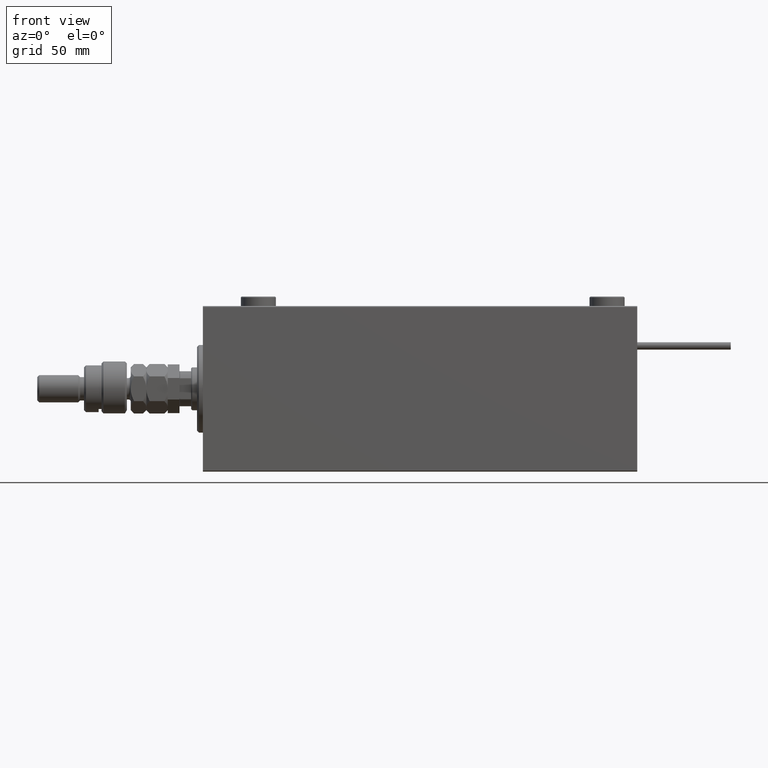
[diagram: clean part render]
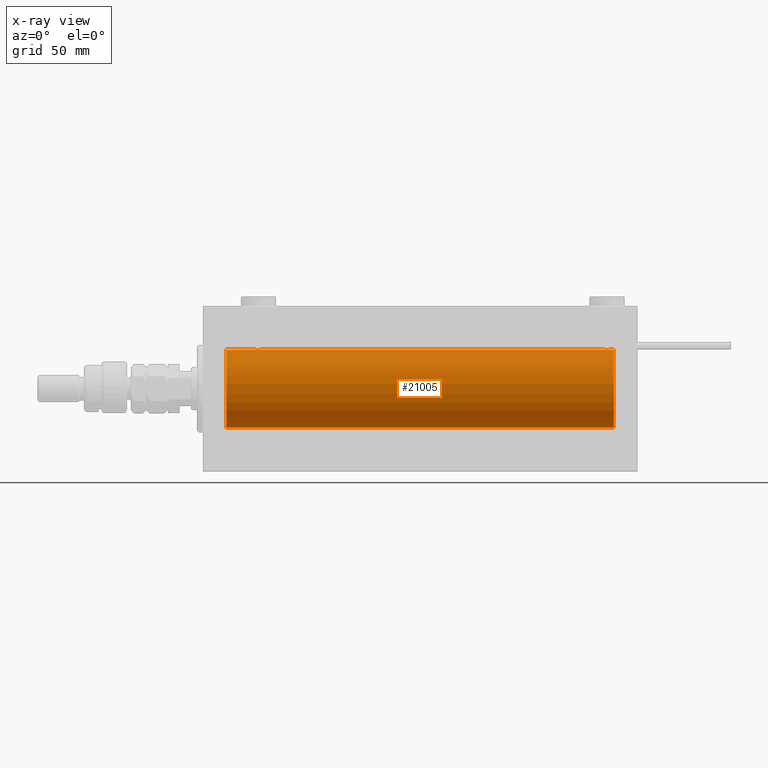
[diagram: x-ray — body ghosted, one internal face saturated and labeled with its STEP entity id]
A machine part, front view, then the same camera in x-ray: the body is ghosted and one INTERNAL B-rep face — a face not visible from any outside direction — is saturated and labeled: STEP entity #21005.
In plain terms, the highlighted cylindrical surface (partial cylindrical patch) has radius 20 mm, axis along (-1, -0, -0).
Its self-contained STEP definition (entity closure, byte-faithful):
#100 = VECTOR ( 'NONE', #28155, 1000.000000000000000 ) ;
#208 = CARTESIAN_POINT ( 'NONE',  ( 208.3857907667073732, -1.797933656607912711, 19.91908554465558367 ) ) ;
#629 = CARTESIAN_POINT ( 'NONE',  ( 29.50067219139243235, -1.736582545981374182, 19.92459705242980306 ) ) ;
#1449 = CARTESIAN_POINT ( 'NONE',  ( 26.55244937117492299, -0.5243189001515023984, 19.99457699142850942 ) ) ;
#1707 = CARTESIAN_POINT ( 'NONE',  ( 211.0000000000000000, 0.000000000000000000, 0.000000000000000000 ) ) ;
#2199 = ORIENTED_EDGE ( 'NONE', *, *, #7352, .T. ) ;
#2250 = CYLINDRICAL_SURFACE ( 'NONE', #18867, 20.00000000000000000 ) ;
#2325 = CARTESIAN_POINT ( 'NONE',  ( 28.23922743968432059, -1.987205673487808966, -19.90104673894211018 ) ) ;
#2733 = CARTESIAN_POINT ( 'NONE',  ( 205.7531302369693265, -1.008108445278719900, -19.97602680192585822 ) ) ;
#3163 = CARTESIAN_POINT ( 'NONE',  ( 26.75313023696928738, -1.008108445278687704, -19.97602680192586533 ) ) ;
#3572 = CARTESIAN_POINT ( 'NONE',  ( 207.6336519614245617, -1.999898234284084308, -19.89975896996866211 ) ) ;
#5108 = CARTESIAN_POINT ( 'NONE',  ( 27.85369326075355900, -1.897222639860597360, 19.90987429971497136 ) ) ;
#5117 = EDGE_CURVE ( 'NONE', #36342, #52017, #21608, .T. ) ;
#5223 = VERTEX_POINT ( 'NONE', #8175 ) ;
#5933 = CARTESIAN_POINT ( 'NONE',  ( 29.14348528733042798, -1.898187925611338089, 19.90978194174746818 ) ) ;
#5967 = CARTESIAN_POINT ( 'NONE',  ( 211.0000000000000000, 0.000000000000000000, 20.00000000000000000 ) ) ;
#6274 = CARTESIAN_POINT ( 'NONE',  ( 27.98351467081095123, -1.936551476643005198, -19.90603968831098314 ) ) ;
#6805 = VECTOR ( 'NONE', #29160, 1000.000000000000000 ) ;
#6927 = VERTEX_POINT ( 'NONE', #15988 ) ;
#6953 = CARTESIAN_POINT ( 'NONE',  ( 206.9835146708109903, -1.936551476643029401, -19.90603968831098314 ) ) ;
#7352 = EDGE_CURVE ( 'NONE', #49779, #6927, #35092, .T. ) ;
#7517 = CARTESIAN_POINT ( 'NONE',  ( 205.9022530844527239, -1.230936344679302907, -19.96293863536308422 ) ) ;
#7900 = CARTESIAN_POINT ( 'NONE',  ( 211.0000000000000000, 2.449293598294706513E-15, -20.00000000000000000 ) ) ;
#8077 = CARTESIAN_POINT ( 'NONE',  ( 206.9807648786472782, -1.935816449315130860, 19.90611141657401006 ) ) ;
#8175 = CARTESIAN_POINT ( 'NONE',  ( 209.5000000000000284, 2.449293582762473501E-15, -20.00000000000000000 ) ) ;
#8721 = DIRECTION ( 'NONE',  ( -1.000000000000000000, -0.000000000000000000, -0.000000000000000000 ) ) ;
#8904 = CARTESIAN_POINT ( 'NONE',  ( 209.4467948419179777, -0.5270924491156543379, 19.99450181871976184 ) ) ;
#9451 = CARTESIAN_POINT ( 'NONE',  ( 209.5000000000000284, 6.344963575700506717E-15, 20.00000000000000000 ) ) ;
#9597 = CARTESIAN_POINT ( 'NONE',  ( 27.27971054205536205, -1.589957321664211998, 19.93683391378736758 ) ) ;
#9880 = CARTESIAN_POINT ( 'NONE',  ( 27.17693331080529973, -1.505486175075773758, 19.94347168299867334 ) ) ;
#9898 = DIRECTION ( 'NONE',  ( 0.000000000000000000, 0.000000000000000000, 1.000000000000000000 ) ) ;
#10149 = CARTESIAN_POINT ( 'NONE',  ( 27.98076487864722850, -1.935816449315125753, 19.90611141657402072 ) ) ;
#10670 = DIRECTION ( 'NONE',  ( -1.000000000000000000, -0.000000000000000000, -0.000000000000000000 ) ) ;
#10883 = CARTESIAN_POINT ( 'NONE',  ( 208.3882943720709591, -1.796691196322336870, -19.91919800395357143 ) ) ;
#11429 = CARTESIAN_POINT ( 'NONE',  ( 205.5524493711750154, -0.5243189001515009551, 19.99457699142850231 ) ) ;
#11512 = ORIENTED_EDGE ( 'NONE', *, *, #29206, .T. ) ;
#11580 = CARTESIAN_POINT ( 'NONE',  ( 28.36941128289166159, -2.000100592782553921, -19.89973863218036598 ) ) ;
#11641 = CARTESIAN_POINT ( 'NONE',  ( 26.50000000000000355, -3.809869420541414000E-15, -20.00000000000000000 ) ) ;
#11710 = CARTESIAN_POINT ( 'NONE',  ( 209.2482591346001755, -1.005710574260850532, -19.97614991974274190 ) ) ;
#12266 = CARTESIAN_POINT ( 'NONE',  ( 206.4969344366040787, -1.735203193119897236, 19.92471783160911869 ) ) ;
#13095 = VECTOR ( 'NONE', #37671, 1000.000000000000000 ) ;
#13116 = ORIENTED_EDGE ( 'NONE', *, *, #22965, .T. ) ;
#13530 = CARTESIAN_POINT ( 'NONE',  ( 30.44679484191799901, -0.5270924491156695479, 19.99450181871976540 ) ) ;
#13798 = CARTESIAN_POINT ( 'NONE',  ( 29.01648532918905943, -1.936551476643006753, 19.90603968831098669 ) ) ;
#14091 = VERTEX_POINT ( 'NONE', #5967 ) ;
#14098 = CARTESIAN_POINT ( 'NONE',  ( 12.00000000000001066, 0.000000000000000000, 0.000000000000000000 ) ) ;
#14632 = CARTESIAN_POINT ( 'NONE',  ( 26.75174086539981033, -1.005710574260841206, 19.97614991974274545 ) ) ;
#14829 = DIRECTION ( 'NONE',  ( 0.000000000000000000, 0.000000000000000000, 1.000000000000000000 ) ) ;
#15023 = ORIENTED_EDGE ( 'NONE', *, *, #24029, .T. ) ;
#15093 = LINE ( 'NONE', #31878, #33063 ) ;
#15236 = CARTESIAN_POINT ( 'NONE',  ( 30.24825913460018612, -1.005710574260838985, -19.97614991974274190 ) ) ;
#15506 = CARTESIAN_POINT ( 'NONE',  ( 30.44755062882508412, -0.5243189001514996228, -19.99457699142849876 ) ) ;
#15635 = CARTESIAN_POINT ( 'NONE',  ( 208.0192351213528354, -1.935816449315146626, -19.90611141657401362 ) ) ;
#15644 = DIRECTION ( 'NONE',  ( -1.000000000000000000, -0.000000000000000000, -0.000000000000000000 ) ) ;
#15660 = ORIENTED_EDGE ( 'NONE', *, *, #27821, .F. ) ;
#15789 = CARTESIAN_POINT ( 'NONE',  ( 29.82306668919470383, -1.505486175075772870, -19.94347168299867334 ) ) ;
#15988 = CARTESIAN_POINT ( 'NONE',  ( 209.5000000000000284, 6.344963575700506717E-15, 20.00000000000000000 ) ) ;
#16465 = CARTESIAN_POINT ( 'NONE',  ( 205.5000000000000568, -0.2610801504281911045, 20.00000000000000000 ) ) ;
#17021 = CARTESIAN_POINT ( 'NONE',  ( 208.5006721913924821, -1.736582545981376624, 19.92459705242981727 ) ) ;
#17124 = CARTESIAN_POINT ( 'NONE',  ( 211.0000000000000000, 2.449293598294706513E-15, -20.00000000000000000 ) ) ;
#17303 = VERTEX_POINT ( 'NONE', #34104 ) ;
#17728 = CARTESIAN_POINT ( 'NONE',  ( 28.63058871710834552, -2.000100592782553921, 19.89973863218035888 ) ) ;
#18141 = CARTESIAN_POINT ( 'NONE',  ( 208.0164853291890950, -1.936551476642998093, 19.90603968831098669 ) ) ;
#18559 = CARTESIAN_POINT ( 'NONE',  ( 26.50000000000001421, -0.2610801504281925478, 20.00000000000000000 ) ) ;
#18867 = AXIS2_PLACEMENT_3D ( 'NONE', #1707, #10670, #23564 ) ;
#19253 = CARTESIAN_POINT ( 'NONE',  ( 205.5000000000000284, -1.553188236289650144E-23, 20.00000000000000000 ) ) ;
#19424 = CARTESIAN_POINT ( 'NONE',  ( 28.63365196142448355, -1.999898234284062992, -19.89975896996866211 ) ) ;
#20260 = CARTESIAN_POINT ( 'NONE',  ( 30.50000000000000000, 2.449293582768389958E-15, -20.00000000000000000 ) ) ;
#20394 = CARTESIAN_POINT ( 'NONE',  ( 208.8230666891946896, -1.505486175075778199, -19.94347168299867690 ) ) ;
#20398 = CARTESIAN_POINT ( 'NONE',  ( 206.1769333108053672, -1.505486175075775757, 19.94347168299868045 ) ) ;
#21005 = ADVANCED_FACE ( 'NONE', ( #44024 ), #2250, .F. ) ;
#21608 = LINE ( 'NONE', #17124, #25595 ) ;
#21783 = CARTESIAN_POINT ( 'NONE',  ( 208.7180541947215033, -1.591668229360198250, 19.93669678979812332 ) ) ;
#21926 = CARTESIAN_POINT ( 'NONE',  ( 26.90058475115969117, -1.228758402364236169, 19.96307487248083845 ) ) ;
#22188 = CARTESIAN_POINT ( 'NONE',  ( 211.0000000000000000, 2.449293598294706513E-15, -20.00000000000000000 ) ) ;
#22300 = EDGE_CURVE ( 'NONE', #5223, #48200, #41073, .T. ) ;
#22591 = EDGE_CURVE ( 'NONE', #14091, #6927, #36860, .T. ) ;
#22767 = CARTESIAN_POINT ( 'NONE',  ( 28.76077256031567586, -1.987205673487809410, 19.90104673894210663 ) ) ;
#22965 = EDGE_CURVE ( 'NONE', #51646, #36342, #51058, .T. ) ;
#23379 = CARTESIAN_POINT ( 'NONE',  ( 29.01923512135276795, -1.935816449315124643, -19.90611141657401717 ) ) ;
#23564 = DIRECTION ( 'NONE',  ( 0.000000000000000000, 0.000000000000000000, 1.000000000000000000 ) ) ;
#23764 = CARTESIAN_POINT ( 'NONE',  ( 206.8565147126696218, -1.898187925611367399, -19.90978194174746463 ) ) ;
#23780 = CARTESIAN_POINT ( 'NONE',  ( 211.0000000000000000, 0.000000000000000000, 0.000000000000000000 ) ) ;
#23910 = CARTESIAN_POINT ( 'NONE',  ( 27.17903093152710525, -1.507328959728492457, -19.94333197382385592 ) ) ;
#24029 = EDGE_CURVE ( 'NONE', #17303, #36274, #50352, .T. ) ;
#24160 = LINE ( 'NONE', #7900, #6805 ) ;
#24199 = CARTESIAN_POINT ( 'NONE',  ( 27.61420923329272981, -1.797933656607917596, -19.91908554465558367 ) ) ;
#24329 = CARTESIAN_POINT ( 'NONE',  ( 209.0994152488403870, -1.228758402364237279, -19.96307487248085266 ) ) ;
#24420 = EDGE_CURVE ( 'NONE', #40609, #14091, #24610, .T. ) ;
#24610 = CIRCLE ( 'NONE', #48754, 20.00000000000000000 ) ;
#24625 = AXIS2_PLACEMENT_3D ( 'NONE', #14098, #31157, #9898 ) ;
#25414 = CARTESIAN_POINT ( 'NONE',  ( 209.0977469155473614, -1.230936344679278482, 19.96293863536309132 ) ) ;
#25595 = VECTOR ( 'NONE', #8721, 1000.000000000000000 ) ;
#26227 = EDGE_LOOP ( 'NONE', ( #51463, #11512, #52574, #31628, #13116, #40519, #38682, #44036, #15023, #15660, #2199, #46693 ) ) ;
#26964 = CARTESIAN_POINT ( 'NONE',  ( 28.23641855908585541, -1.986835489085815087, 19.90108393514801222 ) ) ;
#27556 = CARTESIAN_POINT ( 'NONE',  ( 30.49999999999999645, -0.2610801504281900498, -19.99999999999999645 ) ) ;
#27821 = EDGE_CURVE ( 'NONE', #49779, #36274, #49712, .T. ) ;
#27956 = CARTESIAN_POINT ( 'NONE',  ( 205.5000000000000284, -2.194759453252805910E-14, -20.00000000000000000 ) ) ;
#28155 = DIRECTION ( 'NONE',  ( -1.000000000000000000, -0.000000000000000000, -0.000000000000000000 ) ) ;
#28178 = CARTESIAN_POINT ( 'NONE',  ( 30.50000000000000000, 2.449293582768389958E-15, -20.00000000000000000 ) ) ;
#28223 = CARTESIAN_POINT ( 'NONE',  ( 208.1463067392464836, -1.897222639860616233, -19.90987429971496070 ) ) ;
#28376 = CARTESIAN_POINT ( 'NONE',  ( 28.76358144091416236, -1.986835489085814199, -19.90108393514801222 ) ) ;
#28509 = CARTESIAN_POINT ( 'NONE',  ( 205.9005847511597835, -1.228758402364239721, 19.96307487248084911 ) ) ;
#28657 = CARTESIAN_POINT ( 'NONE',  ( 26.55320515808203297, -0.5270924491156698810, -19.99450181871976184 ) ) ;
#29160 = DIRECTION ( 'NONE',  ( -1.000000000000000000, -0.000000000000000000, -0.000000000000000000 ) ) ;
#29206 = EDGE_CURVE ( 'NONE', #40609, #5223, #24160, .T. ) ;
#29229 = CARTESIAN_POINT ( 'NONE',  ( 12.00000000000001066, 2.449293598294706513E-15, -20.00000000000000000 ) ) ;
#29336 = CARTESIAN_POINT ( 'NONE',  ( 206.6117056279291262, -1.796691196322313999, 19.91919800395357854 ) ) ;
#30018 = CARTESIAN_POINT ( 'NONE',  ( 211.0000000000000000, 2.449293598294706513E-15, -20.00000000000000000 ) ) ;
#30597 = CARTESIAN_POINT ( 'NONE',  ( 30.50000000000000355, -0.2644051013330980249, 20.00000000000000355 ) ) ;
#30858 = CARTESIAN_POINT ( 'NONE',  ( 26.50000000000000355, -1.552636033655995435E-23, 20.00000000000000000 ) ) ;
#30996 = CARTESIAN_POINT ( 'NONE',  ( 209.2468697630308156, -1.008108445278671050, 19.97602680192586888 ) ) ;
#31142 = CARTESIAN_POINT ( 'NONE',  ( 27.49693443660397207, -1.735203193119897458, 19.92471783160910448 ) ) ;
#31157 = DIRECTION ( 'NONE',  ( -1.000000000000000000, 0.000000000000000000, 0.000000000000000000 ) ) ;
#31628 = ORIENTED_EDGE ( 'NONE', *, *, #41353, .T. ) ;
#31878 = CARTESIAN_POINT ( 'NONE',  ( 211.0000000000000000, 0.000000000000000000, 20.00000000000000000 ) ) ;
#32146 = CARTESIAN_POINT ( 'NONE',  ( 209.5000000000000284, -0.2610801504281894947, -19.99999999999999645 ) ) ;
#32351 = CARTESIAN_POINT ( 'NONE',  ( 30.50000000000000000, -1.082540790071359066E-15, 20.00000000000000000 ) ) ;
#32558 = CARTESIAN_POINT ( 'NONE',  ( 29.38829437207091999, -1.796691196322316664, -19.91919800395357143 ) ) ;
#33063 = VECTOR ( 'NONE', #15644, 1000.000000000000000 ) ;
#33531 = CARTESIAN_POINT ( 'NONE',  ( 206.2797105420553407, -1.589957321664211998, 19.93683391378736403 ) ) ;
#33983 = VECTOR ( 'NONE', #42361, 1000.000000000000000 ) ;
#34104 = CARTESIAN_POINT ( 'NONE',  ( 26.50000000000000355, -1.552636033655995435E-23, 20.00000000000000000 ) ) ;
#34795 = CARTESIAN_POINT ( 'NONE',  ( 30.09774691554731163, -1.230936344679276484, 19.96293863536309843 ) ) ;
#35092 = B_SPLINE_CURVE_WITH_KNOTS ( 'NONE', 3,
 ( #37746, #16465, #11429, #37197, #28509, #20398, #33531, #12266, #29336, #46420, #8077, #42230, #38011, #47543, #47259, #18141, #52284, #208, #17021, #21783, #43070, #25414, #30996, #8904, #52019, #9451 ),
 .UNSPECIFIED., .F., .F.,
 ( 4, 2, 2, 2, 2, 2, 2, 2, 2, 2, 2, 2, 4 ),
 ( 0.006256819553329835346, 0.007038738568778791539, 0.007820657584227747733, 0.008211617091952224529, 0.008602576599676703059, 0.008993536107401181590, 0.009384495615125658385, 0.009775455122850136916, 0.01016641463057461545, 0.01055737413829909224, 0.01094833364602356904, 0.01173025266147258334, 0.01251217167692159765 ),
 .UNSPECIFIED. ) ;
#35637 = CARTESIAN_POINT ( 'NONE',  ( 29.82096906847289830, -1.507328959728490236, 19.94333197382385592 ) ) ;
#36274 = VERTEX_POINT ( 'NONE', #32351 ) ;
#36342 = VERTEX_POINT ( 'NONE', #11641 ) ;
#36515 = CARTESIAN_POINT ( 'NONE',  ( 27.28194580527848601, -1.591668229360197140, -19.93669678979812332 ) ) ;
#36644 = CARTESIAN_POINT ( 'NONE',  ( 206.4993278086076032, -1.736582545981399939, -19.92459705242980306 ) ) ;
#36797 = CARTESIAN_POINT ( 'NONE',  ( 30.09941524884030173, -1.228758402364235502, -19.96307487248084911 ) ) ;
#36860 = LINE ( 'NONE', #54485, #100 ) ;
#36921 = CARTESIAN_POINT ( 'NONE',  ( 207.2392274396843277, -1.987205673487832502, -19.90104673894210308 ) ) ;
#37197 = CARTESIAN_POINT ( 'NONE',  ( 205.7517408653998814, -1.005710574260841428, 19.97614991974274190 ) ) ;
#37343 = CARTESIAN_POINT ( 'NONE',  ( 27.49932780860757475, -1.736582545981376180, -19.92459705242981371 ) ) ;
#37671 = DIRECTION ( 'NONE',  ( -1.000000000000000000, -0.000000000000000000, -0.000000000000000000 ) ) ;
#37746 = CARTESIAN_POINT ( 'NONE',  ( 205.5000000000000284, -1.553188236289650144E-23, 20.00000000000000000 ) ) ;
#38011 = CARTESIAN_POINT ( 'NONE',  ( 207.3663480385755520, -1.999898234284061216, 19.89975896996866567 ) ) ;
#38682 = ORIENTED_EDGE ( 'NONE', *, *, #52280, .T. ) ;
#39000 = CARTESIAN_POINT ( 'NONE',  ( 28.36634803857552356, -1.999898234284064769, 19.89975896996866567 ) ) ;
#39015 = CARTESIAN_POINT ( 'NONE',  ( 12.00000000000001066, 0.000000000000000000, 20.00000000000000000 ) ) ;
#39819 = CIRCLE ( 'NONE', #24625, 20.00000000000000000 ) ;
#39828 = CARTESIAN_POINT ( 'NONE',  ( 29.71805419472152110, -1.591668229360196696, 19.93669678979813042 ) ) ;
#40437 = CARTESIAN_POINT ( 'NONE',  ( 26.90225308445269903, -1.230936344679278260, -19.96293863536309132 ) ) ;
#40519 = ORIENTED_EDGE ( 'NONE', *, *, #5117, .T. ) ;
#40609 = VERTEX_POINT ( 'NONE', #22188 ) ;
#40835 = CARTESIAN_POINT ( 'NONE',  ( 206.1790309315271372, -1.507328959728516438, -19.94333197382385592 ) ) ;
#41073 = B_SPLINE_CURVE_WITH_KNOTS ( 'NONE', 3,
 ( #49245, #32146, #49788, #11710, #24329, #20394, #46137, #41400, #10883, #28223, #15635, #45599, #3572, #41951, #36921, #6953, #23764, #53720, #36644, #45872, #40835, #7517, #2733, #50347, #41121, #27956 ),
 .UNSPECIFIED., .F., .F.,
 ( 4, 2, 2, 2, 2, 2, 2, 2, 2, 2, 2, 2, 4 ),
 ( 0.006256819553329811927, 0.007038738568778726487, 0.007820657584227641915, 0.008211617091952127384, 0.008602576599676614588, 0.008993536107401101792, 0.009384495615125588996, 0.009775455122850074466, 0.01016641463057456167, 0.01055737413829904714, 0.01094833364602353434, 0.01173025266147256600, 0.01251217167692159765 ),
 .UNSPECIFIED. ) ;
#41121 = CARTESIAN_POINT ( 'NONE',  ( 205.5000000000000853, -0.2644051013331287225, -20.00000000000000000 ) ) ;
#41136 = DIRECTION ( 'NONE',  ( -1.000000000000000000, 0.000000000000000000, 0.000000000000000000 ) ) ;
#41353 = EDGE_CURVE ( 'NONE', #48200, #51646, #42090, .T. ) ;
#41400 = CARTESIAN_POINT ( 'NONE',  ( 208.5030655633960350, -1.735203193119904341, -19.92471783160911158 ) ) ;
#41679 = EDGE_CURVE ( 'NONE', #17303, #46644, #15093, .T. ) ;
#41951 = CARTESIAN_POINT ( 'NONE',  ( 207.3694112828917469, -2.000100592782575237, -19.89973863218036243 ) ) ;
#42090 = LINE ( 'NONE', #30018, #33983 ) ;
#42230 = CARTESIAN_POINT ( 'NONE',  ( 207.2364185590859620, -1.986835489085817086, 19.90108393514801932 ) ) ;
#42361 = DIRECTION ( 'NONE',  ( -1.000000000000000000, -0.000000000000000000, -0.000000000000000000 ) ) ;
#43070 = CARTESIAN_POINT ( 'NONE',  ( 208.8209690684728912, -1.507328959728491125, 19.94333197382385592 ) ) ;
#43238 = CARTESIAN_POINT ( 'NONE',  ( 205.5000000000000284, -2.194759453252805910E-14, -20.00000000000000000 ) ) ;
#44024 = FACE_OUTER_BOUND ( 'NONE', #26227, .T. ) ;
#44036 = ORIENTED_EDGE ( 'NONE', *, *, #41679, .F. ) ;
#44641 = CARTESIAN_POINT ( 'NONE',  ( 29.14630673924643744, -1.897222639860594029, -19.90987429971496780 ) ) ;
#44916 = CARTESIAN_POINT ( 'NONE',  ( 29.72028945794465571, -1.589957321664208223, -19.93683391378736047 ) ) ;
#45470 = CARTESIAN_POINT ( 'NONE',  ( 27.85651471266959334, -1.898187925611338533, -19.90978194174746818 ) ) ;
#45599 = CARTESIAN_POINT ( 'NONE',  ( 207.7635814409141517, -1.986835489085835738, -19.90108393514801577 ) ) ;
#45755 = CARTESIAN_POINT ( 'NONE',  ( 26.50000000000001066, -0.2644051013331030209, -20.00000000000000355 ) ) ;
#45872 = CARTESIAN_POINT ( 'NONE',  ( 206.2819458052785535, -1.591668229360221565, -19.93669678979811977 ) ) ;
#46137 = CARTESIAN_POINT ( 'NONE',  ( 208.7202894579446877, -1.589957321664215328, -19.93683391378736403 ) ) ;
#46420 = CARTESIAN_POINT ( 'NONE',  ( 206.8536932607536016, -1.897222639860592475, 19.90987429971496780 ) ) ;
#46644 = VERTEX_POINT ( 'NONE', #39015 ) ;
#46693 = ORIENTED_EDGE ( 'NONE', *, *, #22591, .F. ) ;
#47259 = CARTESIAN_POINT ( 'NONE',  ( 207.7607725603157292, -1.987205673487804747, 19.90104673894209952 ) ) ;
#47543 = CARTESIAN_POINT ( 'NONE',  ( 207.6305887171083384, -2.000100592782551256, 19.89973863218035888 ) ) ;
#48200 = VERTEX_POINT ( 'NONE', #43238 ) ;
#48514 = CARTESIAN_POINT ( 'NONE',  ( 27.61170562792909067, -1.796691196322318662, 19.91919800395356788 ) ) ;
#48754 = AXIS2_PLACEMENT_3D ( 'NONE', #23780, #41136, #14829 ) ;
#49112 = CARTESIAN_POINT ( 'NONE',  ( 26.50000000000000355, -3.809869420541414000E-15, -20.00000000000000000 ) ) ;
#49245 = CARTESIAN_POINT ( 'NONE',  ( 209.5000000000000284, 2.449293582762473501E-15, -20.00000000000000000 ) ) ;
#49712 = LINE ( 'NONE', #49989, #13095 ) ;
#49779 = VERTEX_POINT ( 'NONE', #19253 ) ;
#49788 = CARTESIAN_POINT ( 'NONE',  ( 209.4475506288250983, -0.5243189001515076164, -19.99457699142850586 ) ) ;
#49938 = CARTESIAN_POINT ( 'NONE',  ( 29.50306556339602437, -1.735203193119894349, -19.92471783160910803 ) ) ;
#49989 = CARTESIAN_POINT ( 'NONE',  ( 211.0000000000000000, 0.000000000000000000, 20.00000000000000000 ) ) ;
#50347 = CARTESIAN_POINT ( 'NONE',  ( 205.5532051580820792, -0.5270924491157048530, -19.99450181871975474 ) ) ;
#50352 = B_SPLINE_CURVE_WITH_KNOTS ( 'NONE', 3,
 ( #30858, #18559, #1449, #14632, #21926, #9880, #9597, #31142, #48514, #5108, #10149, #26964, #39000, #17728, #22767, #13798, #5933, #52157, #629, #39828, #35637, #34795, #51888, #13530, #30597, #52989 ),
 .UNSPECIFIED., .F., .F.,
 ( 4, 2, 2, 2, 2, 2, 2, 2, 2, 2, 2, 2, 4 ),
 ( 0.006256819553329830141, 0.007038738568778805417, 0.007820657584227780693, 0.008211617091952264427, 0.008602576599676748162, 0.008993536107401231897, 0.009384495615125715631, 0.009775455122850199366, 0.01016641463057468137, 0.01055737413829916510, 0.01094833364602364884, 0.01173025266147261630, 0.01251217167692158204 ),
 .UNSPECIFIED. ) ;
#51058 = B_SPLINE_CURVE_WITH_KNOTS ( 'NONE', 3,
 ( #20260, #27556, #15506, #15236, #36797, #15789, #44916, #49938, #32558, #44641, #23379, #28376, #19424, #11580, #2325, #6274, #45470, #24199, #37343, #36515, #23910, #40437, #3163, #28657, #45755, #49112 ),
 .UNSPECIFIED., .F., .F.,
 ( 4, 2, 2, 2, 2, 2, 2, 2, 2, 2, 2, 2, 4 ),
 ( 0.006256819553329842284, 0.007038738568778818427, 0.007820657584227792836, 0.008211617091952278305, 0.008602576599676762040, 0.008993536107401245774, 0.009384495615125729509, 0.009775455122850213244, 0.01016641463057469871, 0.01055737413829918071, 0.01094833364602366618, 0.01173025266147263365, 0.01251217167692159939 ),
 .UNSPECIFIED. ) ;
#51463 = ORIENTED_EDGE ( 'NONE', *, *, #24420, .F. ) ;
#51646 = VERTEX_POINT ( 'NONE', #28178 ) ;
#51888 = CARTESIAN_POINT ( 'NONE',  ( 30.24686976303072683, -1.008108445278685705, 19.97602680192586888 ) ) ;
#52017 = VERTEX_POINT ( 'NONE', #29229 ) ;
#52019 = CARTESIAN_POINT ( 'NONE',  ( 209.5000000000000284, -0.2644051013330986910, 20.00000000000000000 ) ) ;
#52157 = CARTESIAN_POINT ( 'NONE',  ( 29.38579076670728085, -1.797933656607916264, 19.91908554465557302 ) ) ;
#52280 = EDGE_CURVE ( 'NONE', #52017, #46644, #39819, .T. ) ;
#52284 = CARTESIAN_POINT ( 'NONE',  ( 208.1434852873304067, -1.898187925611334315, 19.90978194174746463 ) ) ;
#52574 = ORIENTED_EDGE ( 'NONE', *, *, #22300, .T. ) ;
#52989 = CARTESIAN_POINT ( 'NONE',  ( 30.50000000000000000, -1.082540790071359066E-15, 20.00000000000000000 ) ) ;
#53720 = CARTESIAN_POINT ( 'NONE',  ( 206.6142092332926836, -1.797933656607944908, -19.91908554465557302 ) ) ;
#54485 = CARTESIAN_POINT ( 'NONE',  ( 211.0000000000000000, 0.000000000000000000, 20.00000000000000000 ) ) ;